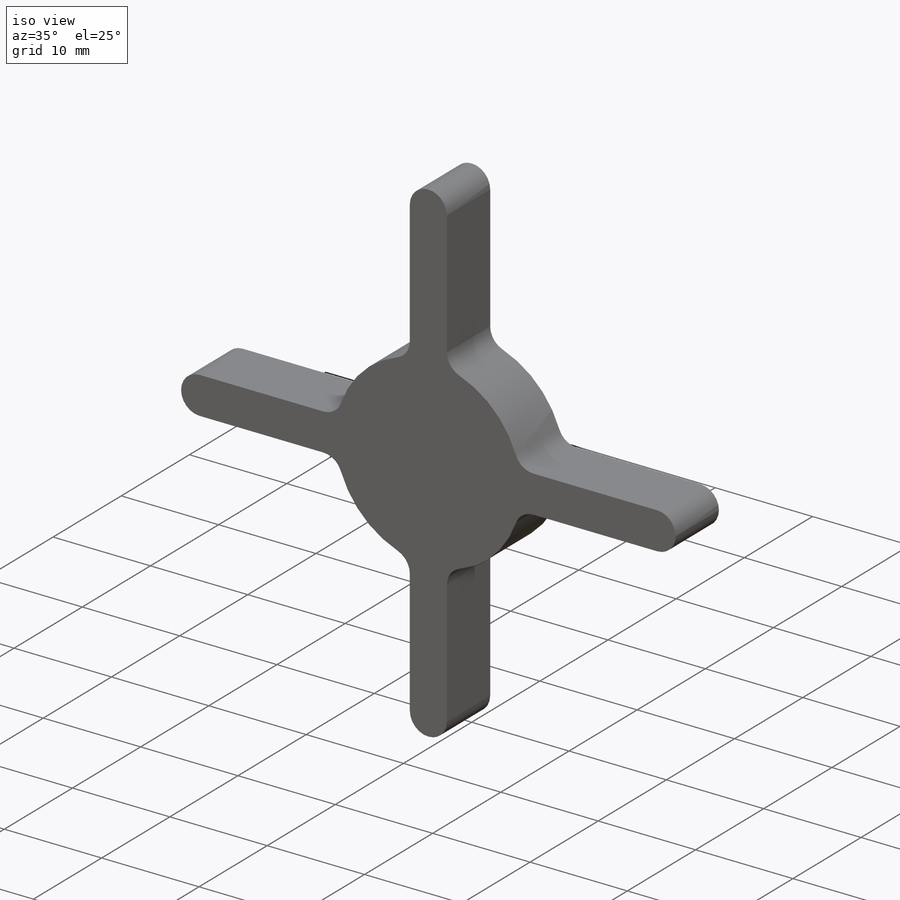
[diagram: iso view]
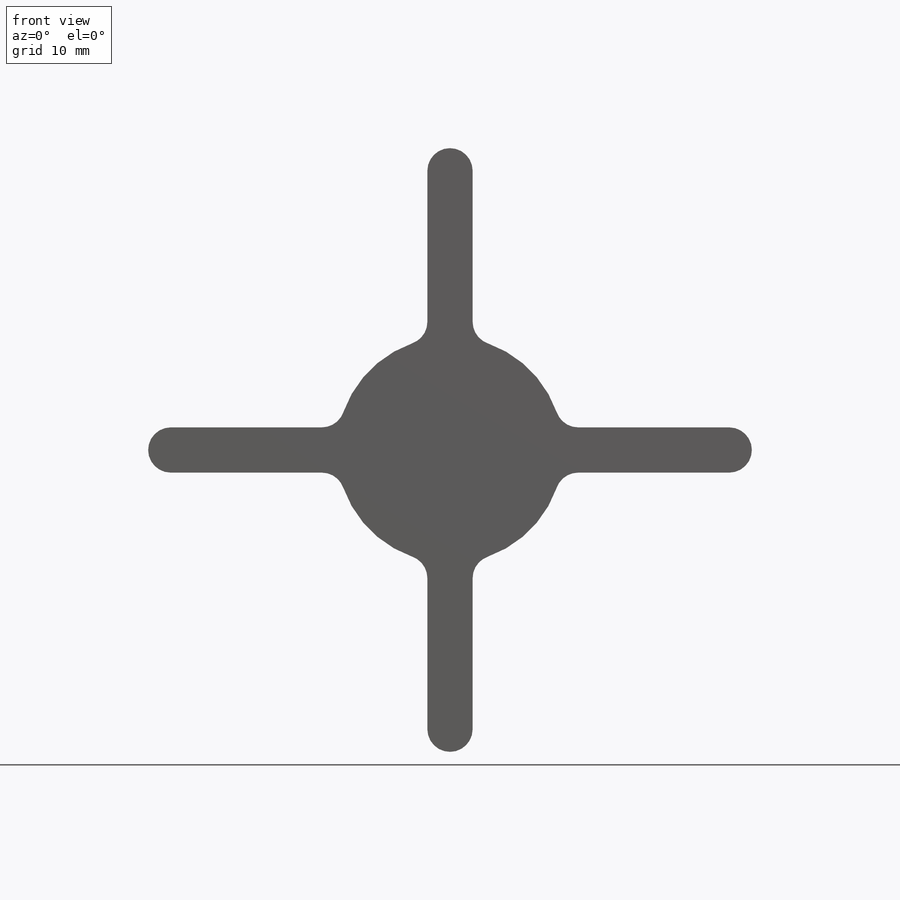
[diagram: front view]
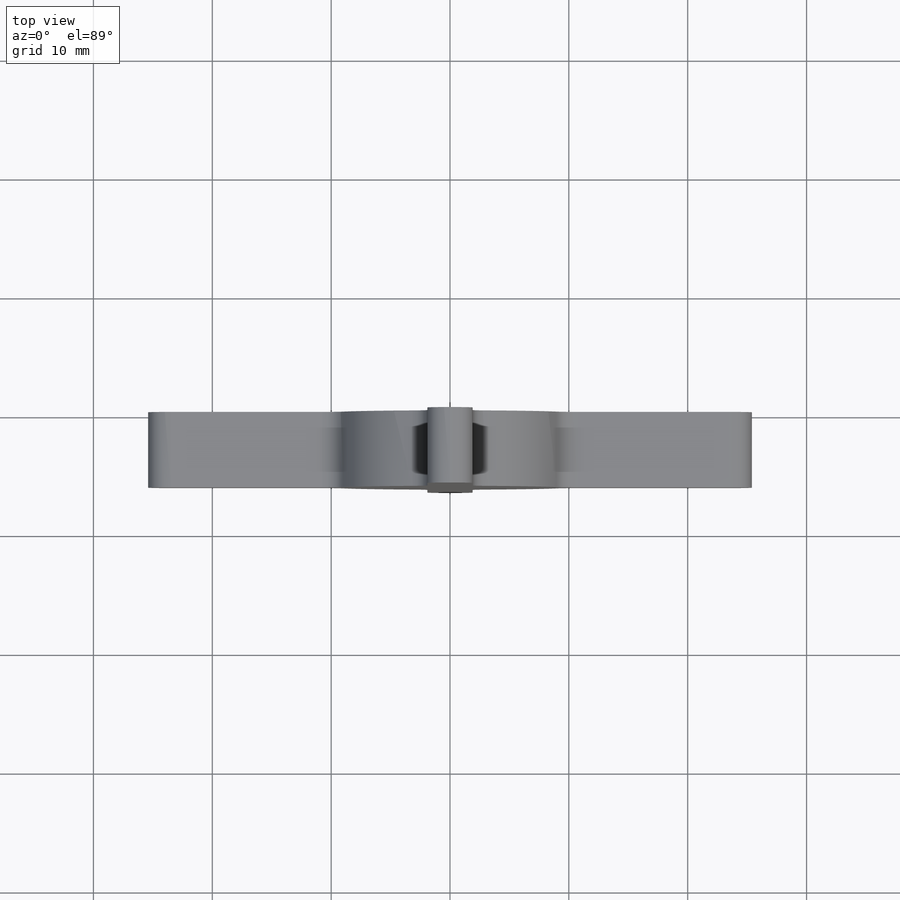
[diagram: top view]
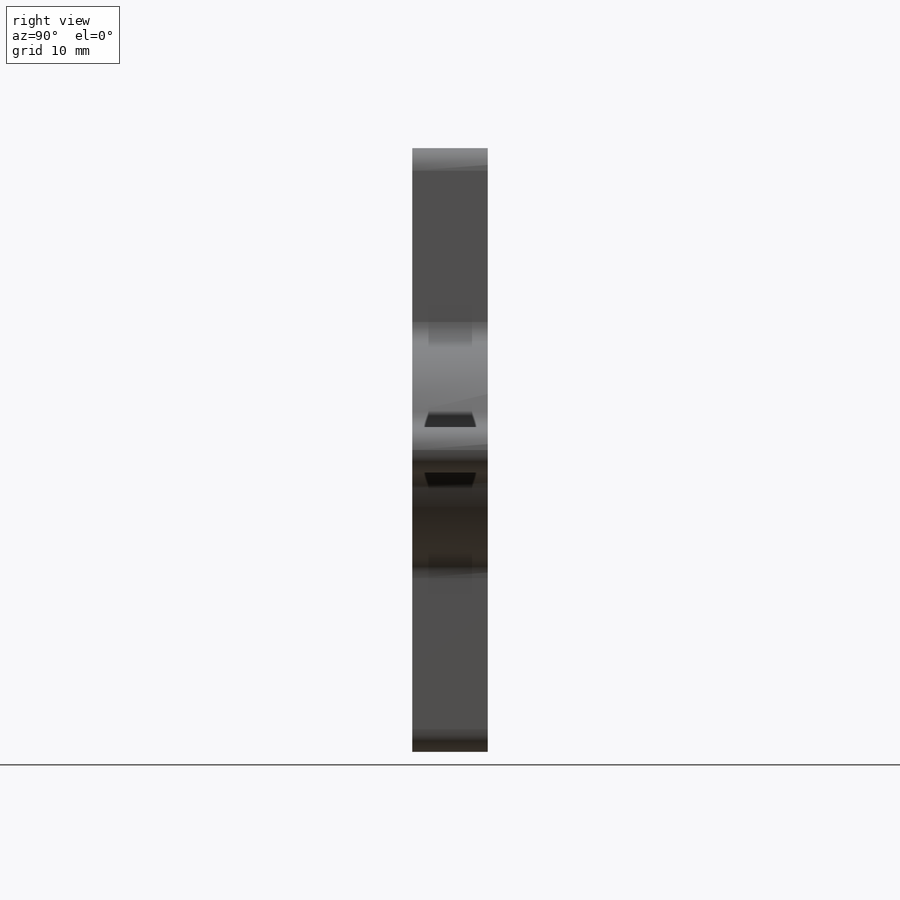
[diagram: right view]
SOLIDWORKS PART (.sldprt)
format: sldprt  version: not decoded by parser v0  size: 318,976 bytes
history: native  units: mm
features: sketch x2, extrude x2, material x1, fillet x1 (+11 scaffold rows collapsed)
feature tree (17):
  scaffold x11  (default folders/planes/origin — collapsed)
  material  "Material <not specified>"
  sketch  "Sketch1"  dims[c1.D1=50.8mm c1.D2=50.8mm c1.D3=1.905mm c1.D4=1.905mm c1.D5=1.905mm c1.D6=1.905mm c1.D7=1.905mm c1.D8=1.905mm c1.D9=1.905mm c1.D10=1.905mm c2.D4=23.495mm c2.D10=1.905mm]
  extrude  "Boss-Extrude1"  Depth=6.35mm
  sketch  "Sketch2"  dims[D1=19.05mm]
  extrude  "Boss-Extrude2"  Depth=6.35mm
  fillet  "Fillet1"  Radius=1.905mm
decode coverage: 5 of 5 modeling features carry decoded parameters
note: suppression state not decoded; provenance and decode notes live in map.json
